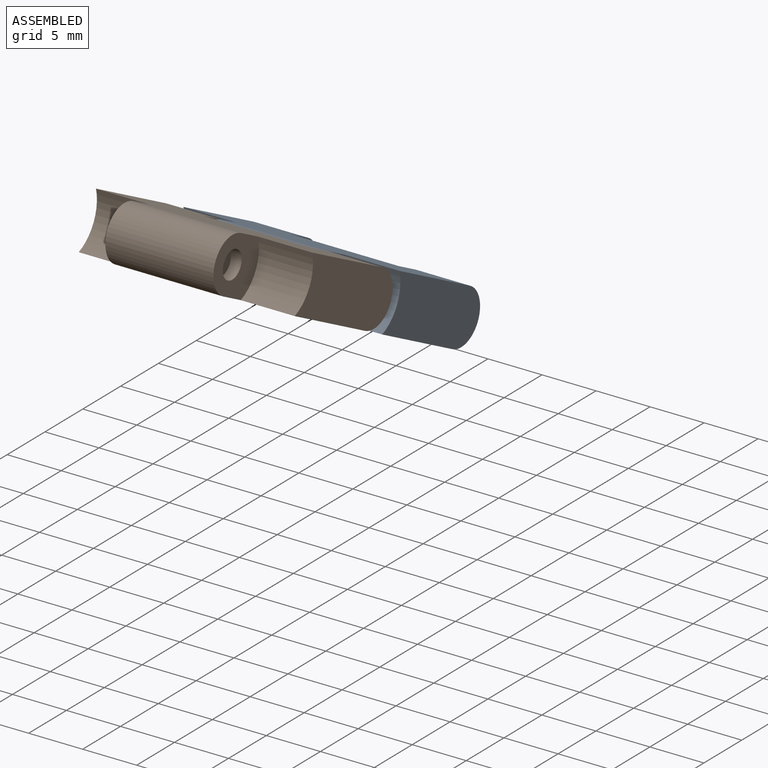
[diagram: assembled view]
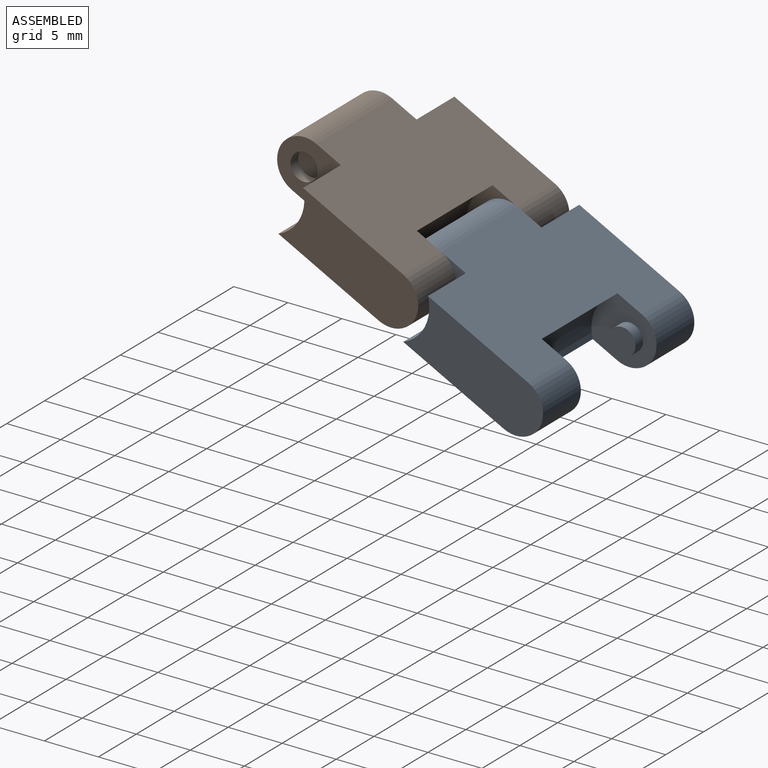
[diagram: assembled view, second angle]
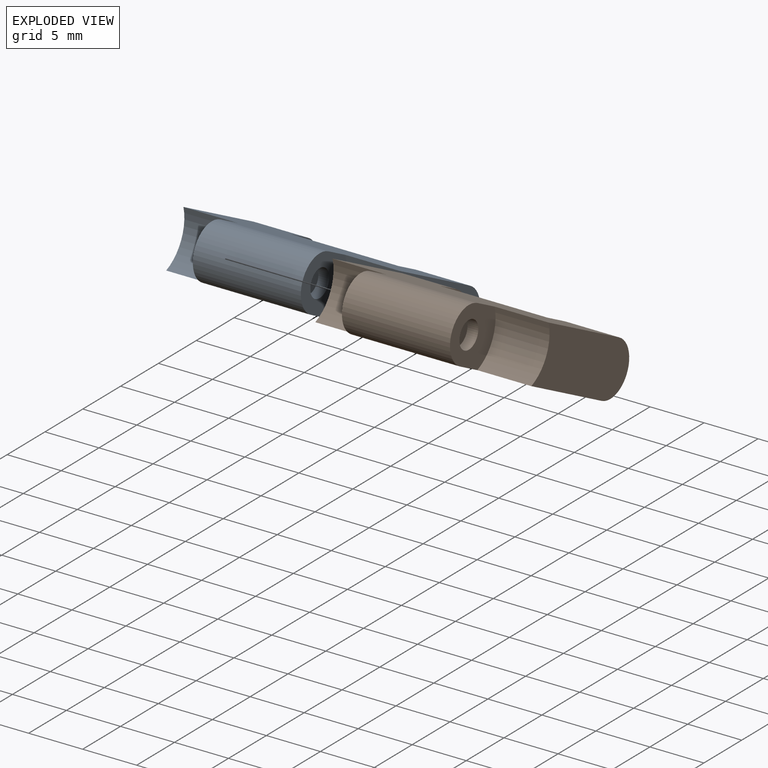
[diagram: exploded view]
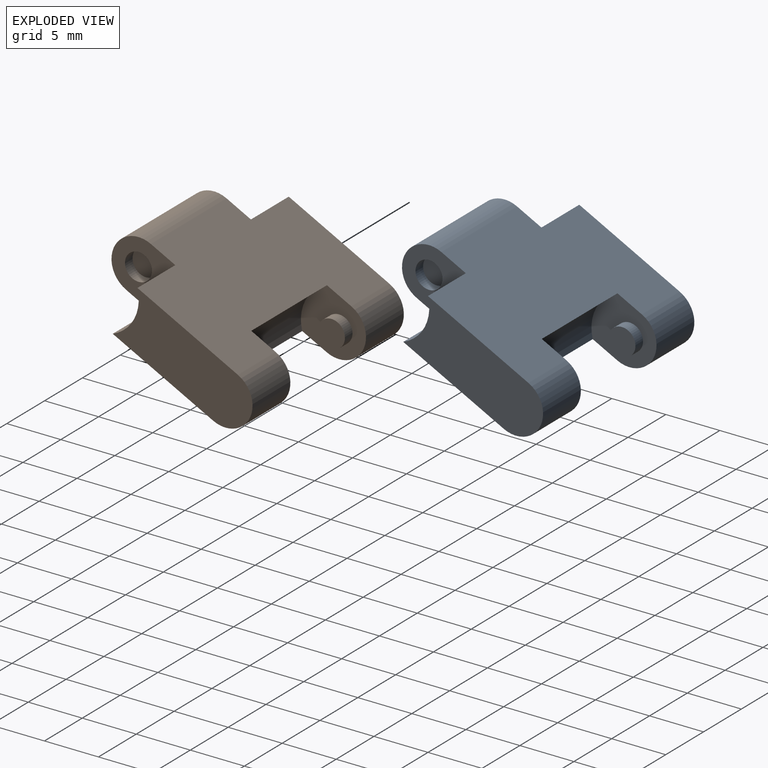
[diagram: exploded view, second angle]
ASSEMBLY  parts=2 mates=2
PART A: 22 faces, bbox 20x18x5 mm
  f0: plane 20x13mm, normal (0,0,-1), area 209.1mm2, adj f1,f2,f4,f5,f6,f7,f8,f13
  f1: cylinder r=2.5mm len=10mm, axis (-1,0,0), area 78.5mm2, adj f0,f3,f8,f17
  f2: cylinder r=2.5mm len=5mm, axis (-1,0,0), area 39.3mm2, adj f0,f3,f4,f6
  f3: plane 20x13mm, normal (0,0,1), area 209.1mm2, adj f1,f2,f4,f5,f6,f7,f8,f13
  f4: plane 12.96x5mm, normal (1,0,0), area 58.8mm2, adj f0,f2,f3,f7
  f5: cylinder r=3.75mm len=10mm, axis (-1,0,0), area 54.7mm2, adj f0,f3,f6,f15
  f6: plane 6x5mm, normal (-1,0,0), area 20.9mm2, adj f0,f2,f3,f5,f11
  f7: cylinder r=3.75mm len=5mm, axis (1,0,0), area 27.4mm2, adj f0,f3,f4,f8
  f8: plane 6x5mm, normal (1,0,0), area 20.9mm2, adj f0,f1,f3,f7,f9
  f9: cylinder r=1.25mm len=2.5mm, axis (1,0,0), area 7.9mm2, adj f8,f10
  f10: plane 2.5x2.5mm, normal (1,0,0), area 4.9mm2, adj f9
  f11: cylinder r=1.25mm len=2.5mm, axis (1,0,0), area 7.9mm2, adj f6,f12
  f12: plane 2.5x2.5mm, normal (-1,0,0), area 4.9mm2, adj f11
  f13: cylinder r=2.5mm len=5mm, axis (1,0,0), area 39.3mm2, adj f0,f3,f14,f15
  f14: plane 12.96x5mm, normal (-1,0,0), area 58.8mm2, adj f0,f3,f13,f16
  f15: plane 6x5mm, normal (1,0,0), area 20.9mm2, adj f0,f3,f5,f13,f20
  f16: cylinder r=3.75mm len=5mm, axis (-1,0,0), area 27.4mm2, adj f0,f3,f14,f17
  f17: plane 6x5mm, normal (-1,0,0), area 20.9mm2, adj f0,f1,f3,f16,f18
  f18: cylinder r=1.25mm len=2.5mm, axis (-1,0,0), area 7.9mm2, adj f17,f19
  f19: plane 2.5x2.5mm, normal (-1,0,0), area 4.9mm2, adj f18
  f20: cylinder r=1.25mm len=2.5mm, axis (-1,0,0), area 7.9mm2, adj f15,f21
  f21: plane 2.5x2.5mm, normal (1,0,0), area 4.9mm2, adj f20
PART B: same geometry as A
PLACE A rot(axis=(-1,0,0),27.2deg) t=(4.72,-5.33,2.14)mm
PLACE B rot(axis=(-1,0,0),27.2deg) t=(4.72,-16.89,8.09)mm
MATE revolute B.f11 <-> A.f9  axis (1,0,0) through (0.72,-11.11,5.12)mm
MATE planar A.f3 <-> B.f3  axis (0,0.46,0.89) through (4.72,-4.19,4.37)mm
